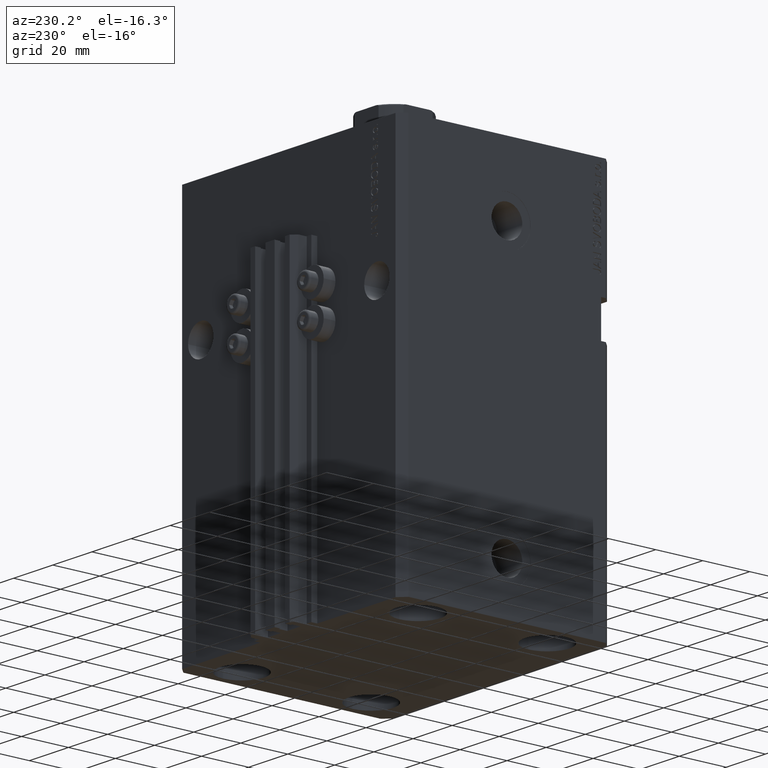
[diagram: clean part render]
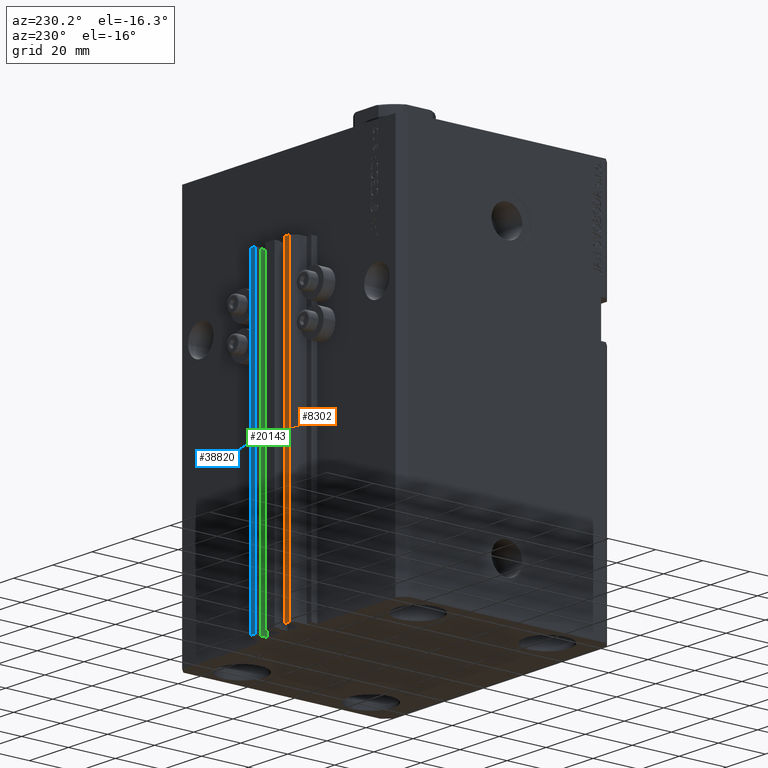
[diagram: same view with three faces highlighted in distinct colors, each labeled with its STEP entity id]
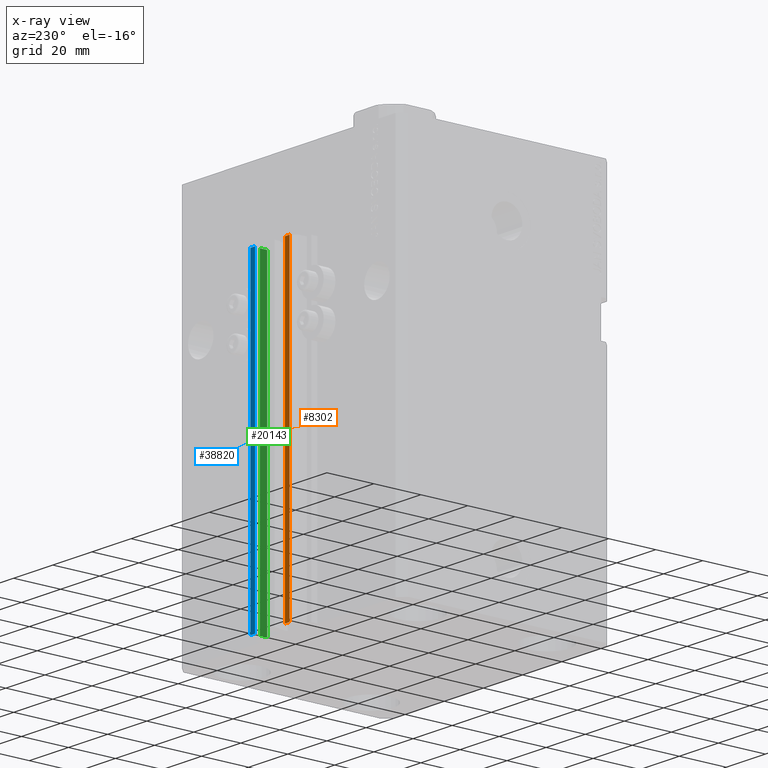
[diagram: x-ray of the same camera — body ghosted, the three highlighted faces saturated]
A machine part, auxiliary view with three faces highlighted in distinct colors.
The next image is the same camera in x-ray (body ghosted, the three faces saturated) — at least one of them is partly hidden behind the body in this view.
Their STEP definitions:

[orange] entity #8302 — the highlighted planar face has unit normal (0, 1, 0).
#2703 = DIRECTION ( 'NONE',  ( 0.000000000000000000, 0.000000000000000000, 1.000000000000000000 ) ) ;
#5224 = CARTESIAN_POINT ( 'NONE',  ( -10.00000000000000000, 52.99999999999999289, -165.0000000000000000 ) ) ;
#7754 = ORIENTED_EDGE ( 'NONE', *, *, #27673, .T. ) ;
#8302 = ADVANCED_FACE ( 'NONE', ( #37162 ), #29547, .T. ) ;
#8585 = CARTESIAN_POINT ( 'NONE',  ( -7.650000000000002132, 52.99999999999999289, -165.0000000000000000 ) ) ;
#8853 = VECTOR ( 'NONE', #2703, 1000.000000000000000 ) ;
#12080 = ORIENTED_EDGE ( 'NONE', *, *, #16695, .T. ) ;
#15328 = CARTESIAN_POINT ( 'NONE',  ( -10.00000000000000000, 52.99999999999999289, -165.0000000000000000 ) ) ;
#16695 = EDGE_CURVE ( 'NONE', #46478, #21435, #47095, .T. ) ;
#16751 = ORIENTED_EDGE ( 'NONE', *, *, #37675, .F. ) ;
#17991 = DIRECTION ( 'NONE',  ( 0.000000000000000000, 1.000000000000000000, -0.000000000000000000 ) ) ;
#18515 = VECTOR ( 'NONE', #24980, 1000.000000000000000 ) ;
#18536 = VERTEX_POINT ( 'NONE', #37805 ) ;
#20490 = DIRECTION ( 'NONE',  ( 0.000000000000000000, 0.000000000000000000, 1.000000000000000000 ) ) ;
#21047 = CARTESIAN_POINT ( 'NONE',  ( -7.650000000000002132, 52.99999999999999289, -165.0000000000000000 ) ) ;
#21435 = VERTEX_POINT ( 'NONE', #15328 ) ;
#22203 = EDGE_LOOP ( 'NONE', ( #24138, #16751, #12080, #7754 ) ) ;
#24138 = ORIENTED_EDGE ( 'NONE', *, *, #33922, .F. ) ;
#24980 = DIRECTION ( 'NONE',  ( -1.000000000000000000, 0.000000000000000000, 0.000000000000000000 ) ) ;
#27673 = EDGE_CURVE ( 'NONE', #21435, #18536, #28351, .T. ) ;
#27939 = CARTESIAN_POINT ( 'NONE',  ( -7.650000000000002132, 52.99999999999999289, -33.00000000000000000 ) ) ;
#28351 = LINE ( 'NONE', #5224, #29773 ) ;
#28353 = VECTOR ( 'NONE', #35724, 1000.000000000000000 ) ;
#29547 = PLANE ( 'NONE',  #41953 ) ;
#29773 = VECTOR ( 'NONE', #20490, 1000.000000000000000 ) ;
#32038 = CARTESIAN_POINT ( 'NONE',  ( -7.650000000000002132, 52.99999999999999289, -33.00000000000000000 ) ) ;
#32240 = VERTEX_POINT ( 'NONE', #27939 ) ;
#32957 = LINE ( 'NONE', #46965, #8853 ) ;
#33922 = EDGE_CURVE ( 'NONE', #32240, #18536, #38919, .T. ) ;
#35724 = DIRECTION ( 'NONE',  ( -1.000000000000000000, 0.000000000000000000, 0.000000000000000000 ) ) ;
#37162 = FACE_OUTER_BOUND ( 'NONE', #22203, .T. ) ;
#37675 = EDGE_CURVE ( 'NONE', #46478, #32240, #32957, .T. ) ;
#37805 = CARTESIAN_POINT ( 'NONE',  ( -10.00000000000000000, 52.99999999999999289, -33.00000000000000000 ) ) ;
#38919 = LINE ( 'NONE', #32038, #28353 ) ;
#41953 = AXIS2_PLACEMENT_3D ( 'NONE', #44531, #17991, #47980 ) ;
#44531 = CARTESIAN_POINT ( 'NONE',  ( -7.650000000000002132, 52.99999999999999289, -165.0000000000000000 ) ) ;
#46478 = VERTEX_POINT ( 'NONE', #8585 ) ;
#46965 = CARTESIAN_POINT ( 'NONE',  ( -7.650000000000002132, 52.99999999999999289, -165.0000000000000000 ) ) ;
#47095 = LINE ( 'NONE', #21047, #18515 ) ;
#47980 = DIRECTION ( 'NONE',  ( 0.000000000000000000, 0.000000000000000000, 1.000000000000000000 ) ) ;

[blue] entity #38820 — the highlighted planar face has unit normal (0, 1, 0).
#149 = VECTOR ( 'NONE', #40431, 1000.000000000000000 ) ;
#3431 = AXIS2_PLACEMENT_3D ( 'NONE', #42826, #20462, #27832 ) ;
#3722 = LINE ( 'NONE', #14545, #11332 ) ;
#5687 = FACE_OUTER_BOUND ( 'NONE', #39675, .T. ) ;
#6499 = LINE ( 'NONE', #44111, #149 ) ;
#7647 = DIRECTION ( 'NONE',  ( -1.000000000000000000, 0.000000000000000000, 0.000000000000000000 ) ) ;
#7682 = LINE ( 'NONE', #22706, #32315 ) ;
#10036 = ORIENTED_EDGE ( 'NONE', *, *, #10155, .T. ) ;
#10053 = ORIENTED_EDGE ( 'NONE', *, *, #47042, .F. ) ;
#10155 = EDGE_CURVE ( 'NONE', #12865, #38590, #3722, .T. ) ;
#11332 = VECTOR ( 'NONE', #7647, 1000.000000000000000 ) ;
#12865 = VERTEX_POINT ( 'NONE', #24733 ) ;
#14545 = CARTESIAN_POINT ( 'NONE',  ( 9.999999999999998224, 53.00000000000000711, -165.0000000000000000 ) ) ;
#15926 = CARTESIAN_POINT ( 'NONE',  ( 9.999999999999998224, 53.00000000000000711, -33.00000000000000000 ) ) ;
#20462 = DIRECTION ( 'NONE',  ( 0.000000000000000000, 1.000000000000000000, -0.000000000000000000 ) ) ;
#21908 = VECTOR ( 'NONE', #35091, 1000.000000000000000 ) ;
#22706 = CARTESIAN_POINT ( 'NONE',  ( 9.999999999999998224, 53.00000000000000711, -165.0000000000000000 ) ) ;
#22802 = VERTEX_POINT ( 'NONE', #31965 ) ;
#23078 = LINE ( 'NONE', #15926, #21908 ) ;
#24733 = CARTESIAN_POINT ( 'NONE',  ( 9.999999999999998224, 53.00000000000000711, -165.0000000000000000 ) ) ;
#25196 = EDGE_CURVE ( 'NONE', #31992, #22802, #23078, .T. ) ;
#25546 = CARTESIAN_POINT ( 'NONE',  ( 9.999999999999998224, 53.00000000000000711, -33.00000000000000000 ) ) ;
#26631 = DIRECTION ( 'NONE',  ( 0.000000000000000000, 0.000000000000000000, 1.000000000000000000 ) ) ;
#27832 = DIRECTION ( 'NONE',  ( 0.000000000000000000, 0.000000000000000000, 1.000000000000000000 ) ) ;
#30086 = ORIENTED_EDGE ( 'NONE', *, *, #36218, .T. ) ;
#31965 = CARTESIAN_POINT ( 'NONE',  ( 7.649999999999998579, 53.00000000000000711, -33.00000000000000000 ) ) ;
#31992 = VERTEX_POINT ( 'NONE', #25546 ) ;
#32315 = VECTOR ( 'NONE', #26631, 1000.000000000000000 ) ;
#35091 = DIRECTION ( 'NONE',  ( -1.000000000000000000, 0.000000000000000000, 0.000000000000000000 ) ) ;
#36218 = EDGE_CURVE ( 'NONE', #38590, #22802, #6499, .T. ) ;
#37982 = ORIENTED_EDGE ( 'NONE', *, *, #25196, .F. ) ;
#38590 = VERTEX_POINT ( 'NONE', #39682 ) ;
#38820 = ADVANCED_FACE ( 'NONE', ( #5687 ), #40105, .T. ) ;
#39675 = EDGE_LOOP ( 'NONE', ( #37982, #10053, #10036, #30086 ) ) ;
#39682 = CARTESIAN_POINT ( 'NONE',  ( 7.649999999999998579, 53.00000000000000711, -165.0000000000000000 ) ) ;
#40105 = PLANE ( 'NONE',  #3431 ) ;
#40431 = DIRECTION ( 'NONE',  ( 0.000000000000000000, 0.000000000000000000, 1.000000000000000000 ) ) ;
#42826 = CARTESIAN_POINT ( 'NONE',  ( 9.999999999999998224, 53.00000000000000711, -165.0000000000000000 ) ) ;
#44111 = CARTESIAN_POINT ( 'NONE',  ( 7.649999999999998579, 53.00000000000000711, -165.0000000000000000 ) ) ;
#47042 = EDGE_CURVE ( 'NONE', #12865, #31992, #7682, .T. ) ;

[green] entity #20143 — the highlighted planar face has unit normal (-1, 0, 0).
#210 = DIRECTION ( 'NONE',  ( 0.000000000000000000, 0.000000000000000000, 1.000000000000000000 ) ) ;
#2192 = CARTESIAN_POINT ( 'NONE',  ( 8.400000000000000355, 50.39999999999999858, -165.0000000000000000 ) ) ;
#3607 = ORIENTED_EDGE ( 'NONE', *, *, #7197, .F. ) ;
#4985 = VECTOR ( 'NONE', #25920, 1000.000000000000000 ) ;
#7197 = EDGE_CURVE ( 'NONE', #45976, #15558, #10383, .T. ) ;
#8056 = PLANE ( 'NONE',  #47694 ) ;
#8702 = ORIENTED_EDGE ( 'NONE', *, *, #11506, .F. ) ;
#10383 = LINE ( 'NONE', #37691, #4985 ) ;
#11506 = EDGE_CURVE ( 'NONE', #26949, #45976, #22383, .T. ) ;
#15439 = FACE_OUTER_BOUND ( 'NONE', #37135, .T. ) ;
#15558 = VERTEX_POINT ( 'NONE', #19947 ) ;
#17454 = DIRECTION ( 'NONE',  ( -5.421010862427508365E-16, -1.000000000000000000, 0.000000000000000000 ) ) ;
#17629 = CARTESIAN_POINT ( 'NONE',  ( 8.400000000000003908, 50.39999999999999858, -33.00000000000000000 ) ) ;
#17933 = LINE ( 'NONE', #2192, #40783 ) ;
#19947 = CARTESIAN_POINT ( 'NONE',  ( 8.400000000000000355, 47.19999999999998863, -33.00000000000000000 ) ) ;
#20143 = ADVANCED_FACE ( 'NONE', ( #15439 ), #8056, .T. ) ;
#22383 = LINE ( 'NONE', #33686, #33451 ) ;
#22579 = EDGE_CURVE ( 'NONE', #40646, #15558, #38609, .T. ) ;
#23075 = DIRECTION ( 'NONE',  ( -5.421010862427507379E-16, -1.000000000000000000, 0.000000000000000000 ) ) ;
#23107 = ORIENTED_EDGE ( 'NONE', *, *, #22579, .T. ) ;
#23152 = DIRECTION ( 'NONE',  ( 0.000000000000000000, 0.000000000000000000, 1.000000000000000000 ) ) ;
#25920 = DIRECTION ( 'NONE',  ( -5.421010862427508365E-16, -1.000000000000000000, 0.000000000000000000 ) ) ;
#26376 = EDGE_CURVE ( 'NONE', #26949, #40646, #17933, .T. ) ;
#26949 = VERTEX_POINT ( 'NONE', #41833 ) ;
#30445 = CARTESIAN_POINT ( 'NONE',  ( 8.400000000000000355, 50.39999999999999858, -165.0000000000000000 ) ) ;
#33451 = VECTOR ( 'NONE', #210, 1000.000000000000000 ) ;
#33686 = CARTESIAN_POINT ( 'NONE',  ( 8.400000000000003908, 50.39999999999999858, -165.0000000000000000 ) ) ;
#33987 = CARTESIAN_POINT ( 'NONE',  ( 8.400000000000000355, 47.19999999999998863, -165.0000000000000000 ) ) ;
#37135 = EDGE_LOOP ( 'NONE', ( #3607, #8702, #46928, #23107 ) ) ;
#37648 = CARTESIAN_POINT ( 'NONE',  ( 8.400000000000000355, 47.19999999999998863, -165.0000000000000000 ) ) ;
#37691 = CARTESIAN_POINT ( 'NONE',  ( 8.400000000000000355, 50.39999999999999858, -33.00000000000000000 ) ) ;
#38324 = VECTOR ( 'NONE', #23152, 1000.000000000000000 ) ;
#38609 = LINE ( 'NONE', #37648, #38324 ) ;
#40646 = VERTEX_POINT ( 'NONE', #33987 ) ;
#40783 = VECTOR ( 'NONE', #17454, 1000.000000000000000 ) ;
#41833 = CARTESIAN_POINT ( 'NONE',  ( 8.400000000000003908, 50.39999999999999858, -165.0000000000000000 ) ) ;
#45434 = DIRECTION ( 'NONE',  ( -1.000000000000000000, 5.421010862427507379E-16, 0.000000000000000000 ) ) ;
#45976 = VERTEX_POINT ( 'NONE', #17629 ) ;
#46928 = ORIENTED_EDGE ( 'NONE', *, *, #26376, .T. ) ;
#47694 = AXIS2_PLACEMENT_3D ( 'NONE', #30445, #45434, #23075 ) ;